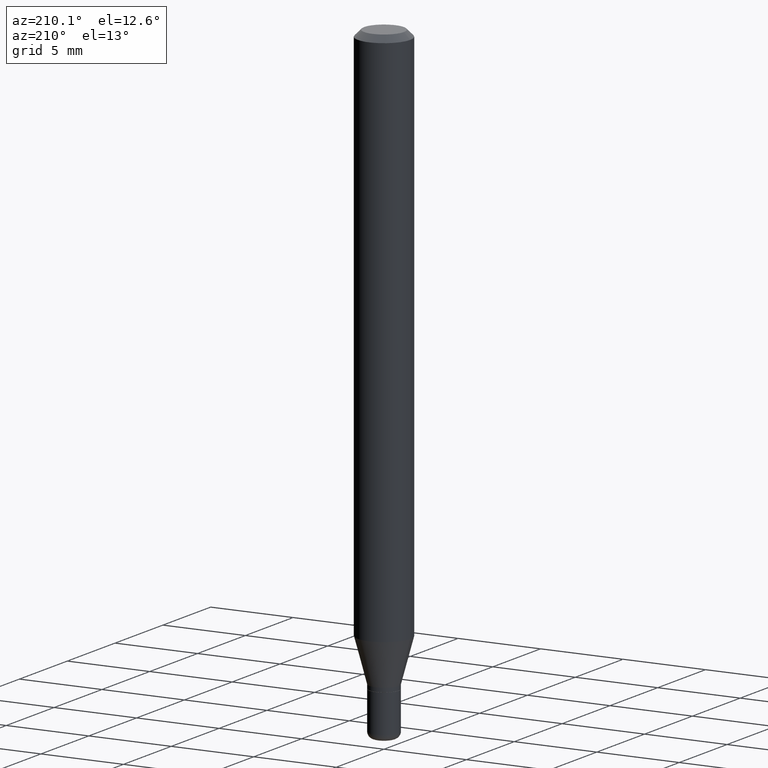
[diagram: clean part render]
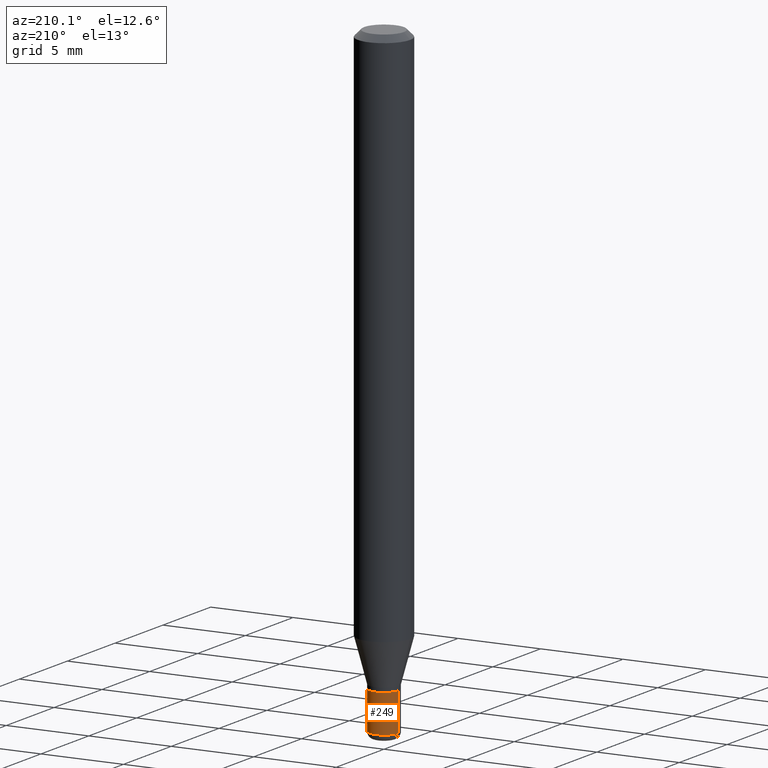
[diagram: same view with one face highlighted and labeled with its STEP entity id]
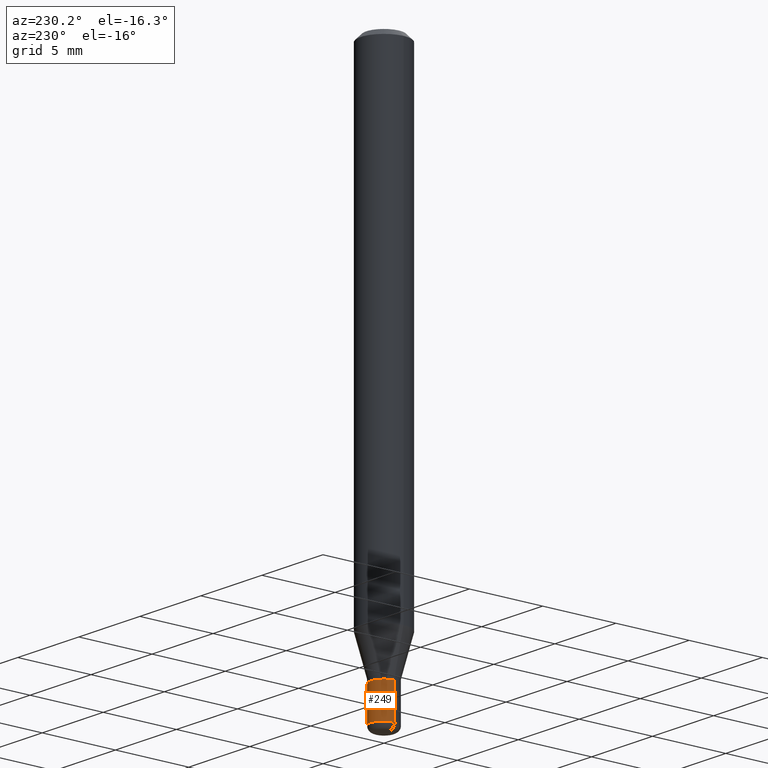
[diagram: same view with one face highlighted and labeled with its STEP entity id]
A machine part, auxiliary view. The second image highlights one B-rep face of the part: STEP entity #249.
A second angle (auxiliary view) of the same face is appended — the face is thin or edge-on in the first view.
In plain terms, the highlighted cylindrical surface (edge-blend (fillet) strip) has radius 0.889 mm, axis along (-0, 0, 1).
Its self-contained STEP definition (entity closure, byte-faithful):
#4 = DIRECTION ( 'NONE',  ( -2.445468806185136597E-29, 3.491481338843145583E-15, 1.000000000000000000 ) ) ;
#12 = AXIS2_PLACEMENT_3D ( 'NONE', #185, #4, #111 ) ;
#17 = VERTEX_POINT ( 'NONE', #332 ) ;
#27 = VERTEX_POINT ( 'NONE', #128 ) ;
#35 = EDGE_CURVE ( 'NONE', #120, #17, #296, .T. ) ;
#48 = DIRECTION ( 'NONE',  ( 1.000000000000000000, -6.982962677686276966E-15, 0.000000000000000000 ) ) ;
#81 = EDGE_CURVE ( 'NONE', #27, #456, #142, .T. ) ;
#85 = ORIENTED_EDGE ( 'NONE', *, *, #35, .F. ) ;
#89 = AXIS2_PLACEMENT_3D ( 'NONE', #329, #291, #378 ) ;
#105 = EDGE_CURVE ( 'NONE', #17, #456, #325, .T. ) ;
#111 = DIRECTION ( 'NONE',  ( 1.000000000000000000, -6.982962677686265922E-15, 4.876176775795936353E-29 ) ) ;
#117 = CARTESIAN_POINT ( 'NONE',  ( 3.411428984628265351E-29, -4.870616467686188228E-15, -1.395000000000000018 ) ) ;
#120 = VERTEX_POINT ( 'NONE', #318 ) ;
#128 = CARTESIAN_POINT ( 'NONE',  ( -0.03499999999999998945, -4.779043170418095363E-15, -1.485000000000000098 ) ) ;
#142 = LINE ( 'NONE', #477, #162 ) ;
#151 = DIRECTION ( 'NONE',  ( -2.445468806185136597E-29, 3.491481338843145583E-15, 1.000000000000000000 ) ) ;
#162 = VECTOR ( 'NONE', #427, 39.37007874015748143 ) ;
#163 = CIRCLE ( 'NONE', #89, 0.03499999999999998945 ) ;
#172 = CYLINDRICAL_SURFACE ( 'NONE', #12, 0.03499999999999999639 ) ;
#185 = CARTESIAN_POINT ( 'NONE',  ( 0.000000000000000000, 0.000000000000000000, 0.000000000000000000 ) ) ;
#240 = ORIENTED_EDGE ( 'NONE', *, *, #81, .T. ) ;
#242 = CARTESIAN_POINT ( 'NONE',  ( 0.03499999999999999639, -2.444036937190192757E-16, 1.706661871528577457E-30 ) ) ;
#249 = ADVANCED_FACE ( 'NONE', ( #298 ), #172, .T. ) ;
#291 = DIRECTION ( 'NONE',  ( -2.445468806185136597E-29, 3.491481338843145583E-15, 1.000000000000000000 ) ) ;
#296 = LINE ( 'NONE', #242, #435 ) ;
#298 = FACE_OUTER_BOUND ( 'NONE', #443, .T. ) ;
#318 = CARTESIAN_POINT ( 'NONE',  ( 0.03499999999999998945, -5.429253481901091458E-15, -1.485000000000000098 ) ) ;
#324 = ORIENTED_EDGE ( 'NONE', *, *, #105, .F. ) ;
#325 = CIRCLE ( 'NONE', #473, 0.03500000000000000333 ) ;
#329 = CARTESIAN_POINT ( 'NONE',  ( 3.631521177184928138E-29, -5.184849788182071492E-15, -1.485000000000000098 ) ) ;
#332 = CARTESIAN_POINT ( 'NONE',  ( 0.03500000000000000333, -5.115020161405208194E-15, -1.395000000000000018 ) ) ;
#365 = EDGE_CURVE ( 'NONE', #120, #27, #163, .T. ) ;
#378 = DIRECTION ( 'NONE',  ( 1.000000000000000000, -6.982962677686280121E-15, 0.000000000000000000 ) ) ;
#379 = ORIENTED_EDGE ( 'NONE', *, *, #365, .T. ) ;
#420 = CARTESIAN_POINT ( 'NONE',  ( -0.03500000000000000333, -4.779043170418095363E-15, -1.395000000000000018 ) ) ;
#427 = DIRECTION ( 'NONE',  ( -2.445468806185136877E-29, 3.491481338843145188E-15, 1.000000000000000000 ) ) ;
#435 = VECTOR ( 'NONE', #453, 39.37007874015748143 ) ;
#443 = EDGE_LOOP ( 'NONE', ( #379, #240, #324, #85 ) ) ;
#453 = DIRECTION ( 'NONE',  ( -2.445468806185136877E-29, 3.491481338843145188E-15, 1.000000000000000000 ) ) ;
#456 = VERTEX_POINT ( 'NONE', #420 ) ;
#473 = AXIS2_PLACEMENT_3D ( 'NONE', #117, #151, #48 ) ;
#477 = CARTESIAN_POINT ( 'NONE',  ( -0.03499999999999999639, 2.486899575160350394E-16, -1.721627281589216757E-30 ) ) ;